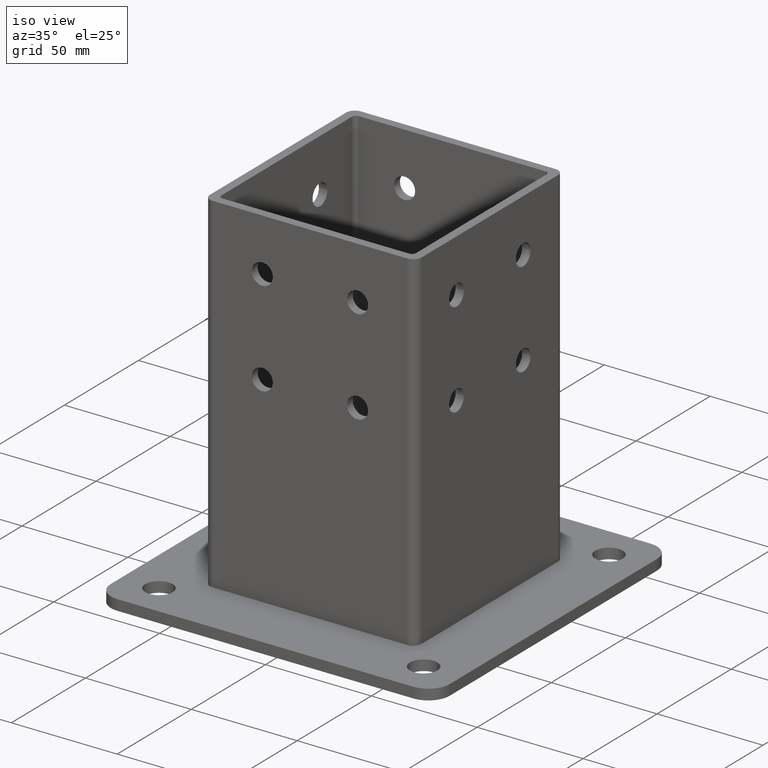
[diagram: clean part render]
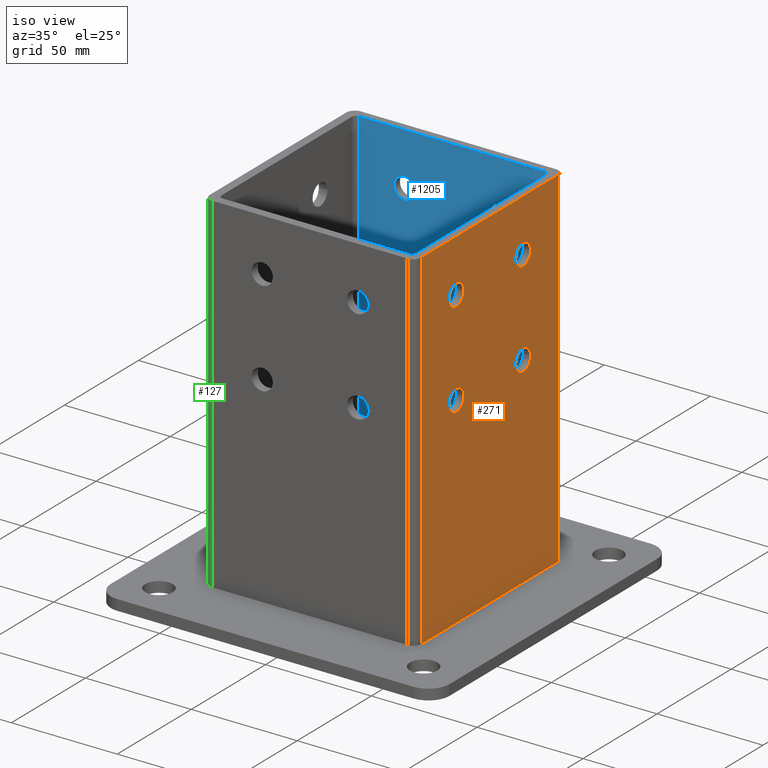
[diagram: same view with three faces highlighted in distinct colors, each labeled with its STEP entity id]
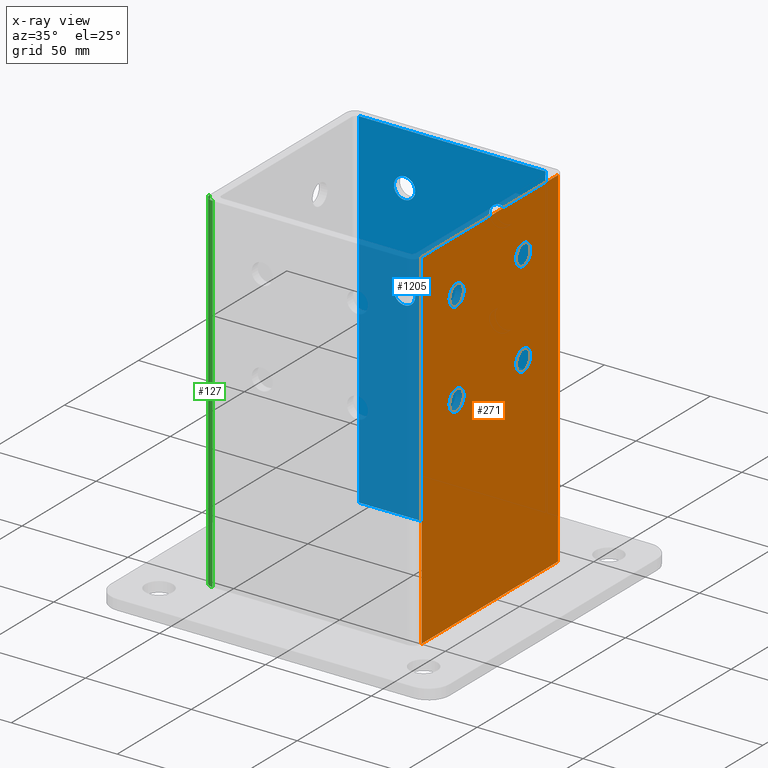
[diagram: x-ray of the same camera — body ghosted, the three highlighted faces saturated]
A machine part, iso view with three faces highlighted in distinct colors.
The next image is the same camera in x-ray (body ghosted, the three faces saturated) — at least one of them is partly hidden behind the body in this view.
Their STEP definitions:

[orange] entity #271 — the highlighted planar face has unit normal (1, 0, 0).
#17=CARTESIAN_POINT('',(50.000017688286235,125.999993541799140,170.000004028592830));
#18=VERTEX_POINT('',#17);
#26=CARTESIAN_POINT('',(50.000017688286235,125.999993541799140,5.0));
#27=VERTEX_POINT('',#26);
#28=CARTESIAN_POINT('',(50.000017688286235,125.999993541799140,5.0));
#29=DIRECTION('',(0.0,0.0,1.0));
#30=VECTOR('',#29,165.000004028592830);
#31=LINE('',#28,#30);
#32=EDGE_CURVE('',#27,#18,#31,.T.);
#133=CARTESIAN_POINT('',(50.000017688286235,34.000006457559778,5.0));
#134=VERTEX_POINT('',#133);
#135=CARTESIAN_POINT('',(50.000017688286235,34.000006457559778,170.000004028592830));
#136=VERTEX_POINT('',#135);
#137=CARTESIAN_POINT('',(50.000017688286235,34.000006457559778,5.0));
#138=DIRECTION('',(0.0,0.0,1.0));
#139=VECTOR('',#138,165.000004028592830);
#140=LINE('',#137,#139);
#141=EDGE_CURVE('',#134,#136,#140,.T.);
#170=CARTESIAN_POINT('',(50.000017688286235,30.000006457559778,5.0));
#171=DIRECTION('',(1.0,0.0,0.0));
#172=DIRECTION('',(0.0,1.0,0.0));
#173=AXIS2_PLACEMENT_3D('',#170,#171,#172);
#174=PLANE('',#173);
#175=CARTESIAN_POINT('',(50.000017688286235,34.000006457559778,5.0));
#176=DIRECTION('',(0.0,1.0,0.0));
#177=VECTOR('',#176,91.999987084239365);
#178=LINE('',#175,#177);
#179=EDGE_CURVE('',#134,#27,#178,.T.);
#180=ORIENTED_EDGE('',*,*,#179,.T.);
#181=ORIENTED_EDGE('',*,*,#32,.T.);
#182=CARTESIAN_POINT('',(50.000017688286235,34.000006457559778,170.000004028592830));
#183=DIRECTION('',(0.0,1.0,0.0));
#184=VECTOR('',#183,91.999987084239365);
#185=LINE('',#182,#184);
#186=EDGE_CURVE('',#136,#18,#185,.T.);
#187=ORIENTED_EDGE('',*,*,#186,.F.);
#188=ORIENTED_EDGE('',*,*,#141,.F.);
#189=EDGE_LOOP('',(#180,#181,#187,#188));
#190=FACE_OUTER_BOUND('',#189,.T.);
#191=CARTESIAN_POINT('',(50.000017688286235,52.499979644009422,145.000008071537930));
#192=VERTEX_POINT('',#191);
#193=CARTESIAN_POINT('',(50.000017688286235,62.499979643969226,145.000008071537930));
#194=VERTEX_POINT('',#193);
#195=CARTESIAN_POINT('',(50.000017688286235,57.499979643989320,145.000008071537930));
#196=DIRECTION('',(1.0,0.0,0.0));
#197=DIRECTION('',(0.0,1.0,0.0));
#198=AXIS2_PLACEMENT_3D('',#195,#196,#197);
#199=CIRCLE('',#198,4.999999999979899);
#200=EDGE_CURVE('',#192,#194,#199,.T.);
#201=ORIENTED_EDGE('',*,*,#200,.F.);
#202=CARTESIAN_POINT('',(50.000017688286235,57.499979643989320,145.000008071537930));
#203=DIRECTION('',(1.0,0.0,0.0));
#204=DIRECTION('',(0.0,1.0,0.0));
#205=AXIS2_PLACEMENT_3D('',#202,#203,#204);
#206=CIRCLE('',#205,4.999999999979899);
#207=EDGE_CURVE('',#194,#192,#206,.T.);
#208=ORIENTED_EDGE('',*,*,#207,.F.);
#209=EDGE_LOOP('',(#201,#208));
#210=FACE_BOUND('',#209,.T.);
#211=CARTESIAN_POINT('',(50.000017688286235,97.499979643829334,145.000014388849020));
#212=VERTEX_POINT('',#211);
#213=CARTESIAN_POINT('',(50.000017688286235,107.499979643789150,145.000014388849020));
#214=VERTEX_POINT('',#213);
#215=CARTESIAN_POINT('',(50.000017688286235,102.499979643809240,145.000014388849020));
#216=DIRECTION('',(1.0,0.0,0.0));
#217=DIRECTION('',(0.0,1.0,0.0));
#218=AXIS2_PLACEMENT_3D('',#215,#216,#217);
#219=CIRCLE('',#218,4.999999999979899);
#220=EDGE_CURVE('',#212,#214,#219,.T.);
#221=ORIENTED_EDGE('',*,*,#220,.F.);
#222=CARTESIAN_POINT('',(50.000017688286235,102.499979643809240,145.000014388849020));
#223=DIRECTION('',(1.0,0.0,0.0));
#224=DIRECTION('',(0.0,1.0,0.0));
#225=AXIS2_PLACEMENT_3D('',#222,#223,#224);
#226=CIRCLE('',#225,4.999999999979899);
#227=EDGE_CURVE('',#214,#212,#226,.T.);
#228=ORIENTED_EDGE('',*,*,#227,.F.);
#229=EDGE_LOOP('',(#221,#228));
#230=FACE_BOUND('',#229,.T.);
#231=CARTESIAN_POINT('',(50.000017688286235,52.499989470937784,100.000008071718920));
#232=VERTEX_POINT('',#231);
#233=CARTESIAN_POINT('',(50.000017688286235,62.499989470897589,100.000008071718920));
#234=VERTEX_POINT('',#233);
#235=CARTESIAN_POINT('',(50.000017688286235,57.499989470917683,100.000008071718920));
#236=DIRECTION('',(1.0,0.0,0.0));
#237=DIRECTION('',(0.0,1.0,0.0));
#238=AXIS2_PLACEMENT_3D('',#235,#236,#237);
#239=CIRCLE('',#238,4.999999999979899);
#240=EDGE_CURVE('',#232,#234,#239,.T.);
#241=ORIENTED_EDGE('',*,*,#240,.F.);
#242=CARTESIAN_POINT('',(50.000017688286235,57.499989470917683,100.000008071718920));
#243=DIRECTION('',(1.0,0.0,0.0));
#244=DIRECTION('',(0.0,1.0,0.0));
#245=AXIS2_PLACEMENT_3D('',#242,#243,#244);
#246=CIRCLE('',#245,4.999999999979899);
#247=EDGE_CURVE('',#234,#232,#246,.T.);
#248=ORIENTED_EDGE('',*,*,#247,.F.);
#249=EDGE_LOOP('',(#241,#248));
#250=FACE_BOUND('',#249,.T.);
#251=CARTESIAN_POINT('',(50.000017688286235,97.499989470757697,100.000014389029560));
#252=VERTEX_POINT('',#251);
#253=CARTESIAN_POINT('',(50.000017688286235,107.499989470717510,100.000014389029560));
#254=VERTEX_POINT('',#253);
#255=CARTESIAN_POINT('',(50.000017688286235,102.499989470737600,100.000014389029560));
#256=DIRECTION('',(1.0,0.0,0.0));
#257=DIRECTION('',(0.0,1.0,0.0));
#258=AXIS2_PLACEMENT_3D('',#255,#256,#257);
#259=CIRCLE('',#258,4.999999999979899);
#260=EDGE_CURVE('',#252,#254,#259,.T.);
#261=ORIENTED_EDGE('',*,*,#260,.F.);
#262=CARTESIAN_POINT('',(50.000017688286235,102.499989470737600,100.000014389029560));
#263=DIRECTION('',(1.0,0.0,0.0));
#264=DIRECTION('',(0.0,1.0,0.0));
#265=AXIS2_PLACEMENT_3D('',#262,#263,#264);
#266=CIRCLE('',#265,4.999999999979899);
#267=EDGE_CURVE('',#254,#252,#266,.T.);
#268=ORIENTED_EDGE('',*,*,#267,.F.);
#269=EDGE_LOOP('',(#261,#268));
#270=FACE_BOUND('',#269,.T.);
#271=ADVANCED_FACE('',(#190,#210,#230,#250,#270),#174,.T.);

[blue] entity #1205 — the highlighted planar face has unit normal (0, -1, 0).
#593=CARTESIAN_POINT('',(-43.999995226736345,125.999993541799140,170.000004028592830));
#594=VERTEX_POINT('',#593);
#595=CARTESIAN_POINT('',(44.000017688286235,125.999993541799140,170.000004028592830));
#596=VERTEX_POINT('',#595);
#597=CARTESIAN_POINT('',(-43.999995226736345,125.999993541799140,170.000004028592830));
#598=DIRECTION('',(1.0,0.0,0.0));
#599=VECTOR('',#598,88.000012915022580);
#600=LINE('',#597,#599);
#601=EDGE_CURVE('',#594,#596,#600,.T.);
#711=CARTESIAN_POINT('',(-43.999995226736345,125.999993541799140,5.0));
#712=VERTEX_POINT('',#711);
#754=CARTESIAN_POINT('',(44.000017688286235,125.999993541799140,5.0));
#755=VERTEX_POINT('',#754);
#763=CARTESIAN_POINT('',(-43.999995226736345,125.999993541799140,5.0));
#764=DIRECTION('',(1.0,0.0,0.0));
#765=VECTOR('',#764,88.000012915022580);
#766=LINE('',#763,#765);
#767=EDGE_CURVE('',#712,#755,#766,.T.);
#806=CARTESIAN_POINT('',(44.000017688286235,125.999993541799140,5.0));
#807=DIRECTION('',(0.0,0.0,1.0));
#808=VECTOR('',#807,165.000004028592830);
#809=LINE('',#806,#808);
#810=EDGE_CURVE('',#755,#596,#809,.T.);
#821=CARTESIAN_POINT('',(-43.999995226736345,125.999993541799140,5.0));
#822=DIRECTION('',(0.0,0.0,1.0));
#823=VECTOR('',#822,165.000004028592830);
#824=LINE('',#821,#823);
#825=EDGE_CURVE('',#712,#594,#824,.T.);
#1114=CARTESIAN_POINT('',(-45.999995226736345,125.999993541799140,5.0));
#1115=DIRECTION('',(0.0,-1.0,0.0));
#1116=DIRECTION('',(1.0,0.0,0.0));
#1117=AXIS2_PLACEMENT_3D('',#1114,#1115,#1116);
#1118=PLANE('',#1117);
#1119=ORIENTED_EDGE('',*,*,#767,.T.);
#1120=ORIENTED_EDGE('',*,*,#810,.T.);
#1121=ORIENTED_EDGE('',*,*,#601,.F.);
#1122=ORIENTED_EDGE('',*,*,#825,.F.);
#1123=EDGE_LOOP('',(#1119,#1120,#1121,#1122));
#1124=FACE_OUTER_BOUND('',#1123,.T.);
#1125=CARTESIAN_POINT('',(-17.500003509546865,125.999993541799140,145.000014388849020));
#1126=VERTEX_POINT('',#1125);
#1127=CARTESIAN_POINT('',(-27.500003509506662,125.999993541799140,145.000014388849020));
#1128=VERTEX_POINT('',#1127);
#1129=CARTESIAN_POINT('',(-22.500003509526763,125.999993541799140,145.000014388849020));
#1130=DIRECTION('',(0.0,1.0,0.0));
#1131=DIRECTION('',(1.0,0.0,0.0));
#1132=AXIS2_PLACEMENT_3D('',#1129,#1130,#1131);
#1133=CIRCLE('',#1132,4.999999999979899);
#1134=EDGE_CURVE('',#1126,#1128,#1133,.T.);
#1135=ORIENTED_EDGE('',*,*,#1134,.T.);
#1136=CARTESIAN_POINT('',(-22.500003509526763,125.999993541799140,145.000014388849020));
#1137=DIRECTION('',(0.0,1.0,0.0));
#1138=DIRECTION('',(1.0,0.0,0.0));
#1139=AXIS2_PLACEMENT_3D('',#1136,#1137,#1138);
#1140=CIRCLE('',#1139,4.999999999979899);
#1141=EDGE_CURVE('',#1128,#1126,#1140,.T.);
#1142=ORIENTED_EDGE('',*,*,#1141,.T.);
#1143=EDGE_LOOP('',(#1135,#1142));
#1144=FACE_BOUND('',#1143,.T.);
#1145=CARTESIAN_POINT('',(27.499996490273055,125.999993541799140,145.000008071537930));
#1146=VERTEX_POINT('',#1145);
#1147=CARTESIAN_POINT('',(17.499996490313258,125.999993541799140,145.000008071537930));
#1148=VERTEX_POINT('',#1147);
#1149=CARTESIAN_POINT('',(22.499996490293157,125.999993541799140,145.000008071537930));
#1150=DIRECTION('',(0.0,1.0,0.0));
#1151=DIRECTION('',(1.0,0.0,0.0));
#1152=AXIS2_PLACEMENT_3D('',#1149,#1150,#1151);
#1153=CIRCLE('',#1152,4.999999999979899);
#1154=EDGE_CURVE('',#1146,#1148,#1153,.T.);
#1155=ORIENTED_EDGE('',*,*,#1154,.T.);
#1156=CARTESIAN_POINT('',(22.499996490293157,125.999993541799140,145.000008071537930));
#1157=DIRECTION('',(0.0,1.0,0.0));
#1158=DIRECTION('',(1.0,0.0,0.0));
#1159=AXIS2_PLACEMENT_3D('',#1156,#1157,#1158);
#1160=CIRCLE('',#1159,4.999999999979899);
#1161=EDGE_CURVE('',#1148,#1146,#1160,.T.);
#1162=ORIENTED_EDGE('',*,*,#1161,.T.);
#1163=EDGE_LOOP('',(#1155,#1162));
#1164=FACE_BOUND('',#1163,.T.);
#1165=CARTESIAN_POINT('',(-17.500013336475227,125.999993541799140,100.000014389029560));
#1166=VERTEX_POINT('',#1165);
#1167=CARTESIAN_POINT('',(-27.500013336435025,125.999993541799140,100.000014389029560));
#1168=VERTEX_POINT('',#1167);
#1169=CARTESIAN_POINT('',(-22.500013336455126,125.999993541799140,100.000014389029560));
#1170=DIRECTION('',(0.0,1.0,0.0));
#1171=DIRECTION('',(1.0,0.0,0.0));
#1172=AXIS2_PLACEMENT_3D('',#1169,#1170,#1171);
#1173=CIRCLE('',#1172,4.999999999979899);
#1174=EDGE_CURVE('',#1166,#1168,#1173,.T.);
#1175=ORIENTED_EDGE('',*,*,#1174,.T.);
#1176=CARTESIAN_POINT('',(-22.500013336455126,125.999993541799140,100.000014389029560));
#1177=DIRECTION('',(0.0,1.0,0.0));
#1178=DIRECTION('',(1.0,0.0,0.0));
#1179=AXIS2_PLACEMENT_3D('',#1176,#1177,#1178);
#1180=CIRCLE('',#1179,4.999999999979899);
#1181=EDGE_CURVE('',#1168,#1166,#1180,.T.);
#1182=ORIENTED_EDGE('',*,*,#1181,.T.);
#1183=EDGE_LOOP('',(#1175,#1182));
#1184=FACE_BOUND('',#1183,.T.);
#1185=CARTESIAN_POINT('',(27.499986663344693,125.999993541799140,100.000008071718920));
#1186=VERTEX_POINT('',#1185);
#1187=CARTESIAN_POINT('',(17.499986663384895,125.999993541799140,100.000008071718920));
#1188=VERTEX_POINT('',#1187);
#1189=CARTESIAN_POINT('',(22.499986663364794,125.999993541799140,100.000008071718920));
#1190=DIRECTION('',(0.0,1.0,0.0));
#1191=DIRECTION('',(1.0,0.0,0.0));
#1192=AXIS2_PLACEMENT_3D('',#1189,#1190,#1191);
#1193=CIRCLE('',#1192,4.999999999979899);
#1194=EDGE_CURVE('',#1186,#1188,#1193,.T.);
#1195=ORIENTED_EDGE('',*,*,#1194,.T.);
#1196=CARTESIAN_POINT('',(22.499986663364794,125.999993541799140,100.000008071718920));
#1197=DIRECTION('',(0.0,1.0,0.0));
#1198=DIRECTION('',(1.0,0.0,0.0));
#1199=AXIS2_PLACEMENT_3D('',#1196,#1197,#1198);
#1200=CIRCLE('',#1199,4.999999999979899);
#1201=EDGE_CURVE('',#1188,#1186,#1200,.T.);
#1202=ORIENTED_EDGE('',*,*,#1201,.T.);
#1203=EDGE_LOOP('',(#1195,#1202));
#1204=FACE_BOUND('',#1203,.T.);
#1205=ADVANCED_FACE('',(#1124,#1144,#1164,#1184,#1204),#1118,.T.);

[green] entity #127 — the highlighted cylindrical surface (edge-blend (fillet) strip) has radius 4 mm, axis along (0, 0, -1).
#86=CARTESIAN_POINT('',(-45.999995226736345,34.000006457559778,5.0));
#87=DIRECTION('',(0.0,0.0,-1.0));
#88=DIRECTION('',(0.0,-1.0,0.0));
#89=AXIS2_PLACEMENT_3D('',#86,#87,#88);
#90=CYLINDRICAL_SURFACE('',#89,4.0);
#91=CARTESIAN_POINT('',(-45.999995226736345,30.000006457559778,5.0));
#92=VERTEX_POINT('',#91);
#93=CARTESIAN_POINT('',(-45.999995226736345,30.000006457559778,170.000004028592830));
#94=VERTEX_POINT('',#93);
#95=CARTESIAN_POINT('',(-45.999995226736345,30.000006457559778,5.0));
#96=DIRECTION('',(0.0,0.0,1.0));
#97=VECTOR('',#96,165.000004028592830);
#98=LINE('',#95,#97);
#99=EDGE_CURVE('',#92,#94,#98,.T.);
#100=ORIENTED_EDGE('',*,*,#99,.T.);
#101=CARTESIAN_POINT('',(-49.999995226736345,34.000006457559778,170.000004028592830));
#102=VERTEX_POINT('',#101);
#103=CARTESIAN_POINT('',(-45.999995226736345,34.000006457559778,170.000004028592830));
#104=DIRECTION('',(0.0,0.0,-1.0));
#105=DIRECTION('',(0.0,-1.0,0.0));
#106=AXIS2_PLACEMENT_3D('',#103,#104,#105);
#107=CIRCLE('',#106,4.0);
#108=EDGE_CURVE('',#94,#102,#107,.T.);
#109=ORIENTED_EDGE('',*,*,#108,.T.);
#110=CARTESIAN_POINT('',(-49.999995226736345,34.000006457559778,5.0));
#111=VERTEX_POINT('',#110);
#112=CARTESIAN_POINT('',(-49.999995226736345,34.000006457559778,5.0));
#113=DIRECTION('',(0.0,0.0,1.0));
#114=VECTOR('',#113,165.000004028592830);
#115=LINE('',#112,#114);
#116=EDGE_CURVE('',#111,#102,#115,.T.);
#117=ORIENTED_EDGE('',*,*,#116,.F.);
#118=CARTESIAN_POINT('',(-45.999995226736345,34.000006457559778,5.0));
#119=DIRECTION('',(0.0,0.0,-1.0));
#120=DIRECTION('',(0.0,-1.0,0.0));
#121=AXIS2_PLACEMENT_3D('',#118,#119,#120);
#122=CIRCLE('',#121,4.0);
#123=EDGE_CURVE('',#92,#111,#122,.T.);
#124=ORIENTED_EDGE('',*,*,#123,.F.);
#125=EDGE_LOOP('',(#100,#109,#117,#124));
#126=FACE_OUTER_BOUND('',#125,.T.);
#127=ADVANCED_FACE('',(#126),#90,.T.);